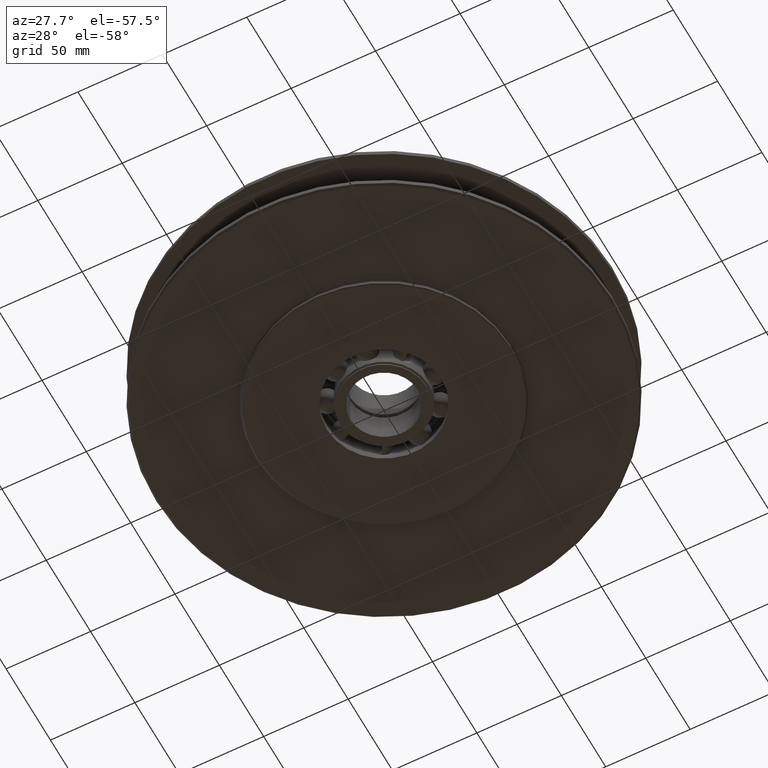
[diagram: clean part render]
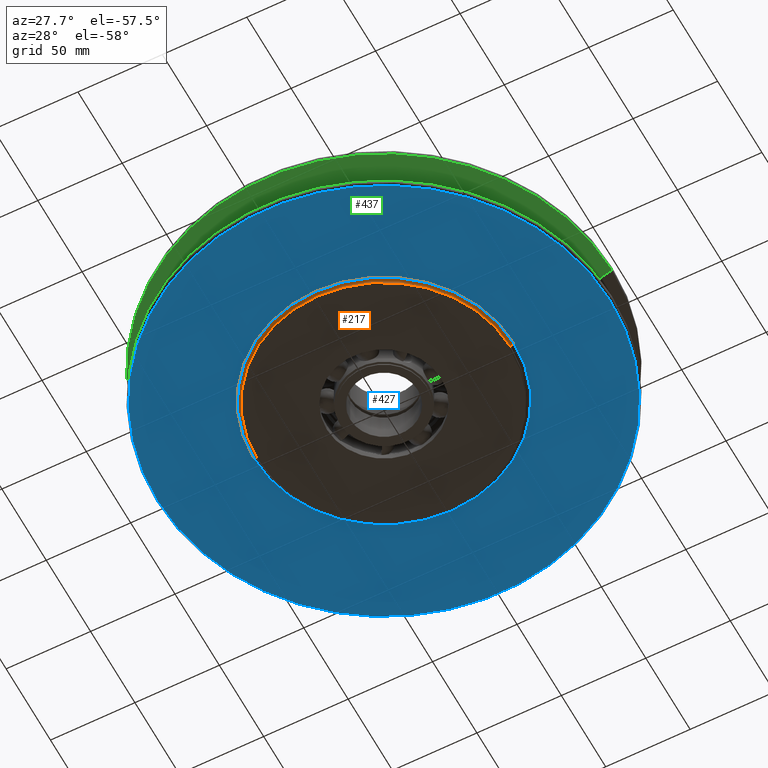
[diagram: same view with three faces highlighted in distinct colors, each labeled with its STEP entity id]
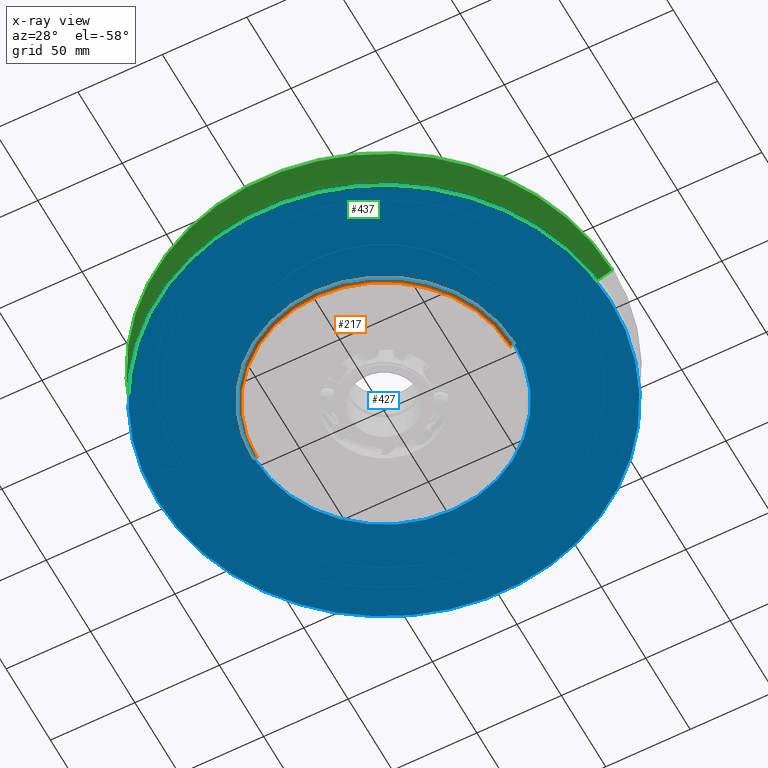
[diagram: x-ray of the same camera — body ghosted, the three highlighted faces saturated]
A machine part, auxiliary view with three faces highlighted in distinct colors.
The next image is the same camera in x-ray (body ghosted, the three faces saturated) — at least one of them is partly hidden behind the body in this view.
Their STEP definitions:

[orange] entity #217 — the highlighted toroidal blend (fillet) surface has major radius 77 mm and minor (blend) radius 2 mm.
#217=ADVANCED_FACE('',(#538),#539,.F.);
#538=FACE_OUTER_BOUND('',#988,.T.);
#539=TOROIDAL_SURFACE('',#989,77.0,2.0);
#988=EDGE_LOOP('',(#1567,#1568,#1569,#1570));
#989=AXIS2_PLACEMENT_3D('',#1571,#1572,#1573);
#1567=ORIENTED_EDGE('',*,*,#2943,.F.);
#1568=ORIENTED_EDGE('',*,*,#2944,.T.);
#1569=ORIENTED_EDGE('',*,*,#2945,.F.);
#1570=ORIENTED_EDGE('',*,*,#2946,.F.);
#1571=CARTESIAN_POINT('',(0.0,0.0,-18.5));
#1572=DIRECTION('',(0.0,0.0,1.0));
#1573=DIRECTION('',(1.0,0.0,0.0));
#2943=EDGE_CURVE('',#3628,#3629,#3630,.T.);
#2944=EDGE_CURVE('',#3628,#3631,#3632,.T.);
#2945=EDGE_CURVE('',#3633,#3631,#3634,.T.);
#2946=EDGE_CURVE('',#3629,#3633,#3635,.T.);
#3628=VERTEX_POINT('',#6053);
#3629=VERTEX_POINT('',#6054);
#3630=CIRCLE('',#6055,2.0);
#3631=VERTEX_POINT('',#6056);
#3632=CIRCLE('',#6057,75.0);
#3633=VERTEX_POINT('',#6058);
#3634=CIRCLE('',#6059,2.0);
#3635=CIRCLE('',#6060,77.0);
#6053=CARTESIAN_POINT('',(-75.0,9.18485099360515E-015,-18.5));
#6054=CARTESIAN_POINT('',(-77.0,9.42978035343462E-015,-16.5));
#6055=AXIS2_PLACEMENT_3D('',#10606,#10607,#10608);
#6056=CARTESIAN_POINT('',(75.0,0.0,-18.5));
#6057=AXIS2_PLACEMENT_3D('',#10609,#10610,#10611);
#6058=CARTESIAN_POINT('',(77.0,0.0,-16.5));
#6059=AXIS2_PLACEMENT_3D('',#10612,#10613,#10614);
#6060=AXIS2_PLACEMENT_3D('',#10615,#10616,#10617);
#10606=CARTESIAN_POINT('',(-77.0,9.42978035343462E-015,-18.5));
#10607=DIRECTION('',(-1.22464679914735E-016,-1.0,0.0));
#10608=DIRECTION('',(-1.0,1.22464679914735E-016,-0.0));
#10609=CARTESIAN_POINT('',(0.0,0.0,-18.5));
#10610=DIRECTION('',(0.0,0.0,1.0));
#10611=DIRECTION('',(1.0,0.0,0.0));
#10612=CARTESIAN_POINT('',(77.0,-9.42978035343462E-015,-18.5));
#10613=DIRECTION('',(-1.22464679914735E-016,-1.0,0.0));
#10614=DIRECTION('',(1.0,-1.22464679914735E-016,0.0));
#10615=CARTESIAN_POINT('',(0.0,0.0,-16.5));
#10616=DIRECTION('',(0.0,0.0,1.0));
#10617=DIRECTION('',(1.0,0.0,0.0));

[blue] entity #427 — the highlighted planar face has unit normal (-0, 0, -1).
#427=ADVANCED_FACE('',(#880,#881),#882,.T.);
#880=FACE_OUTER_BOUND('',#1330,.T.);
#881=FACE_BOUND('',#1331,.T.);
#882=PLANE('',#1332);
#1330=EDGE_LOOP('',(#2767,#2768));
#1331=EDGE_LOOP('',(#2769,#2770));
#1332=AXIS2_PLACEMENT_3D('',#2771,#2772,#2773);
#2767=ORIENTED_EDGE('',*,*,#2940,.F.);
#2768=ORIENTED_EDGE('',*,*,#3401,.F.);
#2769=ORIENTED_EDGE('',*,*,#3399,.T.);
#2770=ORIENTED_EDGE('',*,*,#2946,.T.);
#2771=CARTESIAN_POINT('',(105.5,0.0,-16.5));
#2772=DIRECTION('',(-0.0,0.0,-1.0));
#2773=DIRECTION('',(-1.0,-0.0,0.0));
#2940=EDGE_CURVE('',#3622,#3624,#3625,.T.);
#2946=EDGE_CURVE('',#3629,#3633,#3635,.T.);
#3399=EDGE_CURVE('',#3633,#3629,#4304,.T.);
#3401=EDGE_CURVE('',#3624,#3622,#4306,.T.);
#3622=VERTEX_POINT('',#6045);
#3624=VERTEX_POINT('',#6048);
#3625=CIRCLE('',#6049,134.0);
#3629=VERTEX_POINT('',#6054);
#3633=VERTEX_POINT('',#6058);
#3635=CIRCLE('',#6060,77.0);
#4304=CIRCLE('',#10419,77.0);
#4306=CIRCLE('',#10421,134.0);
#6045=CARTESIAN_POINT('',(134.0,0.0,-16.5));
#6048=CARTESIAN_POINT('',(-134.0,1.64102671085745E-014,-16.5));
#6049=AXIS2_PLACEMENT_3D('',#10602,#10603,#10604);
#6054=CARTESIAN_POINT('',(-77.0,9.42978035343462E-015,-16.5));
#6058=CARTESIAN_POINT('',(77.0,0.0,-16.5));
#6060=AXIS2_PLACEMENT_3D('',#10615,#10616,#10617);
#10419=AXIS2_PLACEMENT_3D('',#11104,#11105,#11106);
#10421=AXIS2_PLACEMENT_3D('',#11107,#11108,#11109);
#10602=CARTESIAN_POINT('',(0.0,0.0,-16.5));
#10603=DIRECTION('',(0.0,0.0,1.0));
#10604=DIRECTION('',(1.0,0.0,0.0));
#10615=CARTESIAN_POINT('',(0.0,0.0,-16.5));
#10616=DIRECTION('',(0.0,0.0,1.0));
#10617=DIRECTION('',(1.0,0.0,0.0));
#11104=CARTESIAN_POINT('',(0.0,0.0,-16.5));
#11105=DIRECTION('',(0.0,0.0,1.0));
#11106=DIRECTION('',(1.0,0.0,0.0));
#11107=CARTESIAN_POINT('',(0.0,0.0,-16.5));
#11108=DIRECTION('',(0.0,0.0,1.0));
#11109=DIRECTION('',(1.0,0.0,0.0));

[green] entity #437 — the highlighted conical surface has half-angle 67.5 deg.
#437=ADVANCED_FACE('',(#896),#897,.T.);
#896=FACE_OUTER_BOUND('',#1346,.T.);
#897=CONICAL_SURFACE('',#1347,127.410608,1.17809725595661);
#1346=EDGE_LOOP('',(#2807,#2808,#2809,#2810));
#1347=AXIS2_PLACEMENT_3D('',#2811,#2812,#2813);
#2807=ORIENTED_EDGE('',*,*,#2922,.T.);
#2808=ORIENTED_EDGE('',*,*,#3382,.F.);
#2809=ORIENTED_EDGE('',*,*,#2923,.T.);
#2810=ORIENTED_EDGE('',*,*,#2920,.T.);
#2811=CARTESIAN_POINT('',(0.0,0.0,9.610786));
#2812=DIRECTION('',(-0.0,-0.0,1.0));
#2813=DIRECTION('',(1.0,0.0,0.0));
#2920=EDGE_CURVE('',#3414,#3416,#3595,.T.);
#2922=EDGE_CURVE('',#3416,#3597,#3598,.T.);
#2923=EDGE_CURVE('',#3599,#3414,#3600,.T.);
#3382=EDGE_CURVE('',#3599,#3597,#4287,.T.);
#3414=VERTEX_POINT('',#4319);
#3416=VERTEX_POINT('',#4321);
#3595=CIRCLE('',#6012,119.821216);
#3597=VERTEX_POINT('',#6014);
#3598=LINE('',#6015,#6016);
#3599=VERTEX_POINT('',#6017);
#3600=LINE('',#6018,#6019);
#4287=CIRCLE('',#10402,135.0);
#4319=CARTESIAN_POINT('',(-119.821216,1.46738668644344E-014,6.467157));
#4321=CARTESIAN_POINT('',(119.821216,0.0,6.467157));
#6012=AXIS2_PLACEMENT_3D('',#10571,#10572,#10573);
#6014=CARTESIAN_POINT('',(135.0,0.0,12.754415));
#6015=CARTESIAN_POINT('',(127.410608,-1.56032993264618E-014,9.610786));
#6016=VECTOR('',#10574,1.0);
#6017=CARTESIAN_POINT('',(-135.0,1.65327317884893E-014,12.754415));
#6018=CARTESIAN_POINT('',(-127.410608,1.56032993264618E-014,9.610786));
#6019=VECTOR('',#10575,1.0);
#10402=AXIS2_PLACEMENT_3D('',#11083,#11084,#11085);
#10571=CARTESIAN_POINT('',(0.0,0.0,6.467157));
#10572=DIRECTION('',(0.0,0.0,1.0));
#10573=DIRECTION('',(1.0,0.0,0.0));
#10574=DIRECTION('',(0.923879536667397,-1.13142611737747E-016,0.382683422331353));
#10575=DIRECTION('',(0.923879536667397,-1.13142611737747E-016,-0.382683422331353));
#11083=CARTESIAN_POINT('',(0.0,0.0,12.754415));
#11084=DIRECTION('',(0.0,0.0,1.0));
#11085=DIRECTION('',(1.0,0.0,0.0));